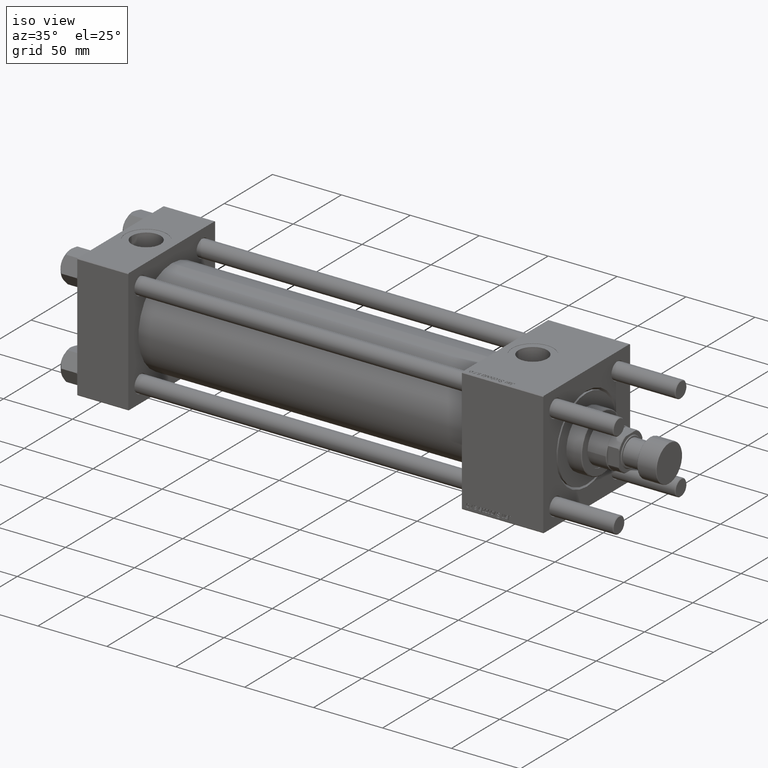
[diagram: clean part render]
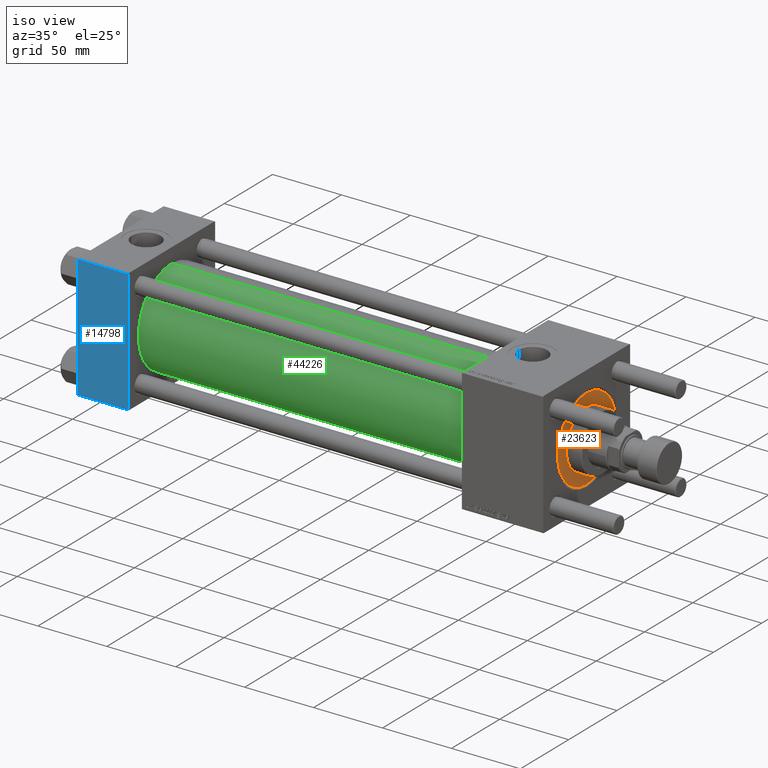
[diagram: same view with three faces highlighted in distinct colors, each labeled with its STEP entity id]
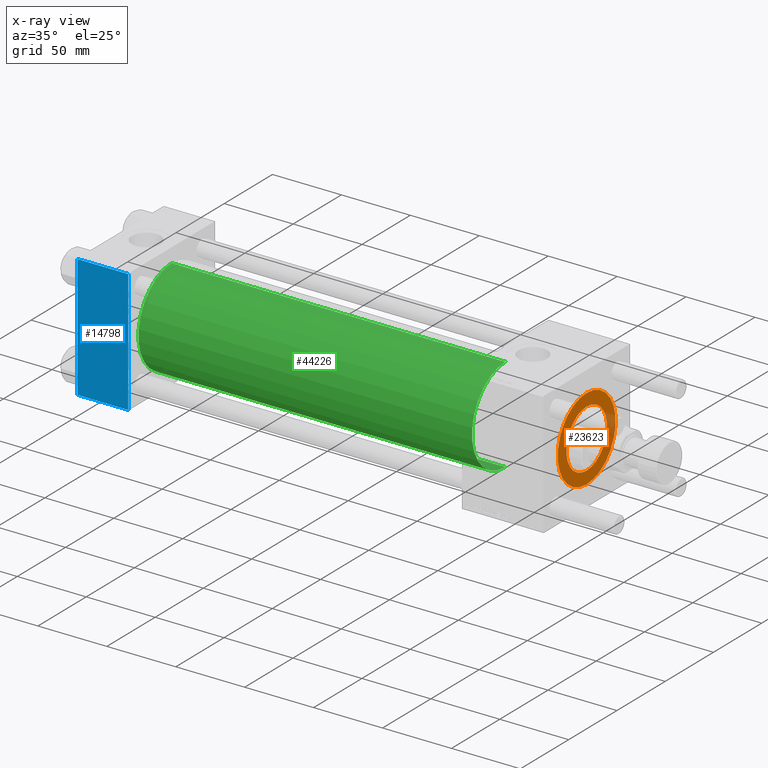
[diagram: x-ray of the same camera — body ghosted, the three highlighted faces saturated]
A machine part, iso view with three faces highlighted in distinct colors.
The next image is the same camera in x-ray (body ghosted, the three faces saturated) — at least one of them is partly hidden behind the body in this view.
Their STEP definitions:

[orange] entity #23623 — the highlighted planar face has unit normal (1, 0, 0).
#1173 = DIRECTION ( 'NONE',  ( 0.000000000000000000, 0.000000000000000000, 1.000000000000000000 ) ) ;
#1835 = EDGE_LOOP ( 'NONE', ( #12314, #47266 ) ) ;
#4172 = DIRECTION ( 'NONE',  ( 1.000000000000000000, 0.000000000000000000, 0.000000000000000000 ) ) ;
#4398 = VERTEX_POINT ( 'NONE', #10115 ) ;
#5191 = CIRCLE ( 'NONE', #52061, 30.00000000000000000 ) ;
#6048 = AXIS2_PLACEMENT_3D ( 'NONE', #32904, #22425, #13721 ) ;
#7211 = VERTEX_POINT ( 'NONE', #27393 ) ;
#8319 = ORIENTED_EDGE ( 'NONE', *, *, #43218, .T. ) ;
#10115 = CARTESIAN_POINT ( 'NONE',  ( 30.00000000000000000, 3.673940397442059178E-15, 28.69999999999999929 ) ) ;
#11454 = DIRECTION ( 'NONE',  ( 0.000000000000000000, 0.000000000000000000, 1.000000000000000000 ) ) ;
#12314 = ORIENTED_EDGE ( 'NONE', *, *, #24743, .F. ) ;
#13652 = AXIS2_PLACEMENT_3D ( 'NONE', #56605, #1173, #25142 ) ;
#13721 = DIRECTION ( 'NONE',  ( 1.000000000000000000, 0.000000000000000000, 0.000000000000000000 ) ) ;
#14803 = ORIENTED_EDGE ( 'NONE', *, *, #24633, .T. ) ;
#17268 = CARTESIAN_POINT ( 'NONE',  ( 0.000000000000000000, 0.000000000000000000, 28.69999999999999929 ) ) ;
#20058 = PLANE ( 'NONE',  #13652 ) ;
#20576 = EDGE_LOOP ( 'NONE', ( #8319, #14803 ) ) ;
#22425 = DIRECTION ( 'NONE',  ( 0.000000000000000000, 0.000000000000000000, 1.000000000000000000 ) ) ;
#23623 = ADVANCED_FACE ( 'NONE', ( #42825, #29334 ), #20058, .T. ) ;
#24633 = EDGE_CURVE ( 'NONE', #4398, #7211, #26146, .T. ) ;
#24743 = EDGE_CURVE ( 'NONE', #48963, #48140, #46231, .T. ) ;
#25142 = DIRECTION ( 'NONE',  ( 1.000000000000000000, 0.000000000000000000, -0.000000000000000000 ) ) ;
#26146 = CIRCLE ( 'NONE', #6048, 30.00000000000000000 ) ;
#27128 = AXIS2_PLACEMENT_3D ( 'NONE', #49001, #57410, #31033 ) ;
#27393 = CARTESIAN_POINT ( 'NONE',  ( -30.00000000000000000, 0.000000000000000000, 28.69999999999999929 ) ) ;
#28113 = CIRCLE ( 'NONE', #27128, 21.00000000000000000 ) ;
#29334 = FACE_OUTER_BOUND ( 'NONE', #20576, .T. ) ;
#30152 = DIRECTION ( 'NONE',  ( 0.000000000000000000, 0.000000000000000000, 1.000000000000000000 ) ) ;
#30166 = EDGE_CURVE ( 'NONE', #48140, #48963, #28113, .T. ) ;
#31033 = DIRECTION ( 'NONE',  ( 1.000000000000000000, 0.000000000000000000, 0.000000000000000000 ) ) ;
#32873 = AXIS2_PLACEMENT_3D ( 'NONE', #17268, #30152, #48419 ) ;
#32904 = CARTESIAN_POINT ( 'NONE',  ( 0.000000000000000000, 0.000000000000000000, 28.69999999999999929 ) ) ;
#35013 = CARTESIAN_POINT ( 'NONE',  ( 21.00000000000000000, 2.571758278209441661E-15, 28.69999999999999929 ) ) ;
#35972 = CARTESIAN_POINT ( 'NONE',  ( -21.00000000000000000, 0.000000000000000000, 28.69999999999999929 ) ) ;
#42825 = FACE_BOUND ( 'NONE', #1835, .T. ) ;
#43218 = EDGE_CURVE ( 'NONE', #7211, #4398, #5191, .T. ) ;
#46231 = CIRCLE ( 'NONE', #32873, 21.00000000000000000 ) ;
#47266 = ORIENTED_EDGE ( 'NONE', *, *, #30166, .F. ) ;
#48140 = VERTEX_POINT ( 'NONE', #35013 ) ;
#48419 = DIRECTION ( 'NONE',  ( 1.000000000000000000, 0.000000000000000000, 0.000000000000000000 ) ) ;
#48963 = VERTEX_POINT ( 'NONE', #35972 ) ;
#49001 = CARTESIAN_POINT ( 'NONE',  ( 0.000000000000000000, 0.000000000000000000, 28.69999999999999929 ) ) ;
#50001 = CARTESIAN_POINT ( 'NONE',  ( 0.000000000000000000, 0.000000000000000000, 28.69999999999999929 ) ) ;
#52061 = AXIS2_PLACEMENT_3D ( 'NONE', #50001, #11454, #4172 ) ;
#56605 = CARTESIAN_POINT ( 'NONE',  ( 0.000000000000000000, 0.000000000000000000, 28.69999999999999929 ) ) ;
#57410 = DIRECTION ( 'NONE',  ( 0.000000000000000000, 0.000000000000000000, 1.000000000000000000 ) ) ;

[blue] entity #14798 — the highlighted planar face has unit normal (0, 1, 0).
#4018 = ORIENTED_EDGE ( 'NONE', *, *, #28407, .T. ) ;
#7513 = VERTEX_POINT ( 'NONE', #35142 ) ;
#9458 = ORIENTED_EDGE ( 'NONE', *, *, #37610, .F. ) ;
#11755 = VECTOR ( 'NONE', #24015, 1000.000000000000000 ) ;
#11892 = CARTESIAN_POINT ( 'NONE',  ( 37.00000000000000000, -45.00000000000000711, 45.00000000000000000 ) ) ;
#12877 = CARTESIAN_POINT ( 'NONE',  ( 0.000000000000000000, -45.00000000000000711, 45.00000000000000000 ) ) ;
#14426 = LINE ( 'NONE', #33008, #11755 ) ;
#14447 = VERTEX_POINT ( 'NONE', #48214 ) ;
#14798 = ADVANCED_FACE ( 'NONE', ( #34683 ), #30464, .F. ) ;
#19765 = VECTOR ( 'NONE', #47746, 1000.000000000000000 ) ;
#24015 = DIRECTION ( 'NONE',  ( -1.000000000000000000, 0.000000000000000000, 0.000000000000000000 ) ) ;
#24809 = DIRECTION ( 'NONE',  ( 0.000000000000000000, -7.709882115452478166E-17, 1.000000000000000000 ) ) ;
#25586 = LINE ( 'NONE', #29485, #19765 ) ;
#25785 = LINE ( 'NONE', #12877, #44315 ) ;
#28407 = EDGE_CURVE ( 'NONE', #31812, #14447, #14426, .T. ) ;
#28482 = EDGE_CURVE ( 'NONE', #14447, #55080, #25785, .T. ) ;
#29485 = CARTESIAN_POINT ( 'NONE',  ( 37.00000000000000000, -45.00000000000000711, 45.00000000000000000 ) ) ;
#30169 = DIRECTION ( 'NONE',  ( -0.000000000000000000, 1.000000000000000000, 7.709882115452478166E-17 ) ) ;
#30464 = PLANE ( 'NONE',  #41122 ) ;
#31001 = CARTESIAN_POINT ( 'NONE',  ( 37.00000000000000000, -45.00000000000000711, 44.49999999999997158 ) ) ;
#31144 = CARTESIAN_POINT ( 'NONE',  ( 37.00000000000000000, -45.00000000000000000, -44.49999999999998579 ) ) ;
#31812 = VERTEX_POINT ( 'NONE', #31001 ) ;
#33008 = CARTESIAN_POINT ( 'NONE',  ( 37.00000000000000000, -45.00000000000000711, 44.49999999999997158 ) ) ;
#34683 = FACE_OUTER_BOUND ( 'NONE', #42602, .T. ) ;
#35142 = CARTESIAN_POINT ( 'NONE',  ( 37.00000000000000000, -45.00000000000000000, -44.49999999999995737 ) ) ;
#35835 = VECTOR ( 'NONE', #45217, 1000.000000000000000 ) ;
#35957 = DIRECTION ( 'NONE',  ( 0.000000000000000000, 7.709882115452476934E-17, -1.000000000000000000 ) ) ;
#36492 = ORIENTED_EDGE ( 'NONE', *, *, #43283, .T. ) ;
#37610 = EDGE_CURVE ( 'NONE', #31812, #7513, #25586, .T. ) ;
#40730 = LINE ( 'NONE', #31144, #35835 ) ;
#41122 = AXIS2_PLACEMENT_3D ( 'NONE', #11892, #30169, #24809 ) ;
#42602 = EDGE_LOOP ( 'NONE', ( #49374, #36492, #9458, #4018 ) ) ;
#43283 = EDGE_CURVE ( 'NONE', #55080, #7513, #40730, .T. ) ;
#44315 = VECTOR ( 'NONE', #35957, 1000.000000000000000 ) ;
#45217 = DIRECTION ( 'NONE',  ( 1.000000000000000000, 0.000000000000000000, 0.000000000000000000 ) ) ;
#46113 = CARTESIAN_POINT ( 'NONE',  ( 0.000000000000000000, -45.00000000000000000, -44.49999999999995737 ) ) ;
#47746 = DIRECTION ( 'NONE',  ( 0.000000000000000000, 7.709882115452476934E-17, -1.000000000000000000 ) ) ;
#48214 = CARTESIAN_POINT ( 'NONE',  ( 0.000000000000000000, -45.00000000000000711, 44.49999999999997158 ) ) ;
#49374 = ORIENTED_EDGE ( 'NONE', *, *, #28482, .T. ) ;
#55080 = VERTEX_POINT ( 'NONE', #46113 ) ;

[green] entity #44226 — the highlighted cylindrical surface (partial cylindrical patch) has radius 34.5 mm, axis along (-1, -0, -0).
#449 = LINE ( 'NONE', #13947, #16544 ) ;
#553 = CARTESIAN_POINT ( 'NONE',  ( 278.9999999999999432, -2.602085213965210642E-15, 0.000000000000000000 ) ) ;
#1121 = VERTEX_POINT ( 'NONE', #44468 ) ;
#1788 = DIRECTION ( 'NONE',  ( 1.000000000000000000, -0.000000000000000000, 0.000000000000000000 ) ) ;
#1822 = CARTESIAN_POINT ( 'NONE',  ( 278.9999999999999432, -2.602085213965210642E-15, 0.000000000000000000 ) ) ;
#3367 = EDGE_CURVE ( 'NONE', #1121, #56945, #449, .T. ) ;
#4587 = VECTOR ( 'NONE', #14841, 1000.000000000000000 ) ;
#5378 = CARTESIAN_POINT ( 'NONE',  ( 37.00000000000000711, 1.622946243093158675E-15, -34.50000000000000000 ) ) ;
#7263 = CIRCLE ( 'NONE', #55078, 34.50000000000000000 ) ;
#10518 = FACE_OUTER_BOUND ( 'NONE', #32881, .T. ) ;
#11397 = DIRECTION ( 'NONE',  ( -1.000000000000000000, -0.000000000000000000, -0.000000000000000000 ) ) ;
#13271 = CARTESIAN_POINT ( 'NONE',  ( 37.00000000000000711, -2.602085213965210642E-15, 34.50000000000000000 ) ) ;
#13947 = CARTESIAN_POINT ( 'NONE',  ( 278.9999999999999432, -2.602085213965210642E-15, 34.50000000000000000 ) ) ;
#14841 = DIRECTION ( 'NONE',  ( -1.000000000000000000, -0.000000000000000000, -0.000000000000000000 ) ) ;
#16191 = ORIENTED_EDGE ( 'NONE', *, *, #57437, .F. ) ;
#16544 = VECTOR ( 'NONE', #41504, 1000.000000000000000 ) ;
#19686 = ORIENTED_EDGE ( 'NONE', *, *, #22509, .T. ) ;
#20110 = DIRECTION ( 'NONE',  ( 0.000000000000000000, 0.000000000000000000, 1.000000000000000000 ) ) ;
#20407 = CYLINDRICAL_SURFACE ( 'NONE', #38738, 34.50000000000000000 ) ;
#22509 = EDGE_CURVE ( 'NONE', #56945, #48075, #35654, .T. ) ;
#28125 = DIRECTION ( 'NONE',  ( 1.000000000000000000, 0.000000000000000000, 0.000000000000000000 ) ) ;
#31758 = ORIENTED_EDGE ( 'NONE', *, *, #3367, .T. ) ;
#32881 = EDGE_LOOP ( 'NONE', ( #16191, #48584, #31758, #19686 ) ) ;
#35625 = CARTESIAN_POINT ( 'NONE',  ( 278.9999999999999432, 1.622946243093158675E-15, -34.50000000000000000 ) ) ;
#35654 = CIRCLE ( 'NONE', #52859, 34.50000000000000000 ) ;
#36393 = EDGE_CURVE ( 'NONE', #1121, #37580, #7263, .T. ) ;
#37580 = VERTEX_POINT ( 'NONE', #42383 ) ;
#38738 = AXIS2_PLACEMENT_3D ( 'NONE', #1822, #11397, #20110 ) ;
#41504 = DIRECTION ( 'NONE',  ( -1.000000000000000000, -0.000000000000000000, -0.000000000000000000 ) ) ;
#42383 = CARTESIAN_POINT ( 'NONE',  ( 278.9999999999999432, 1.622946243093158675E-15, -34.50000000000000000 ) ) ;
#44226 = ADVANCED_FACE ( 'NONE', ( #10518 ), #20407, .T. ) ;
#44468 = CARTESIAN_POINT ( 'NONE',  ( 278.9999999999999432, -2.602085213965210642E-15, 34.50000000000000000 ) ) ;
#45993 = LINE ( 'NONE', #35625, #4587 ) ;
#46393 = DIRECTION ( 'NONE',  ( 0.000000000000000000, 0.000000000000000000, -1.000000000000000000 ) ) ;
#48075 = VERTEX_POINT ( 'NONE', #5378 ) ;
#48584 = ORIENTED_EDGE ( 'NONE', *, *, #36393, .F. ) ;
#51825 = CARTESIAN_POINT ( 'NONE',  ( 37.00000000000000711, -2.602085213965210642E-15, 0.000000000000000000 ) ) ;
#52859 = AXIS2_PLACEMENT_3D ( 'NONE', #51825, #1788, #56037 ) ;
#55078 = AXIS2_PLACEMENT_3D ( 'NONE', #553, #28125, #46393 ) ;
#56037 = DIRECTION ( 'NONE',  ( 0.000000000000000000, 0.000000000000000000, 1.000000000000000000 ) ) ;
#56945 = VERTEX_POINT ( 'NONE', #13271 ) ;
#57437 = EDGE_CURVE ( 'NONE', #37580, #48075, #45993, .T. ) ;